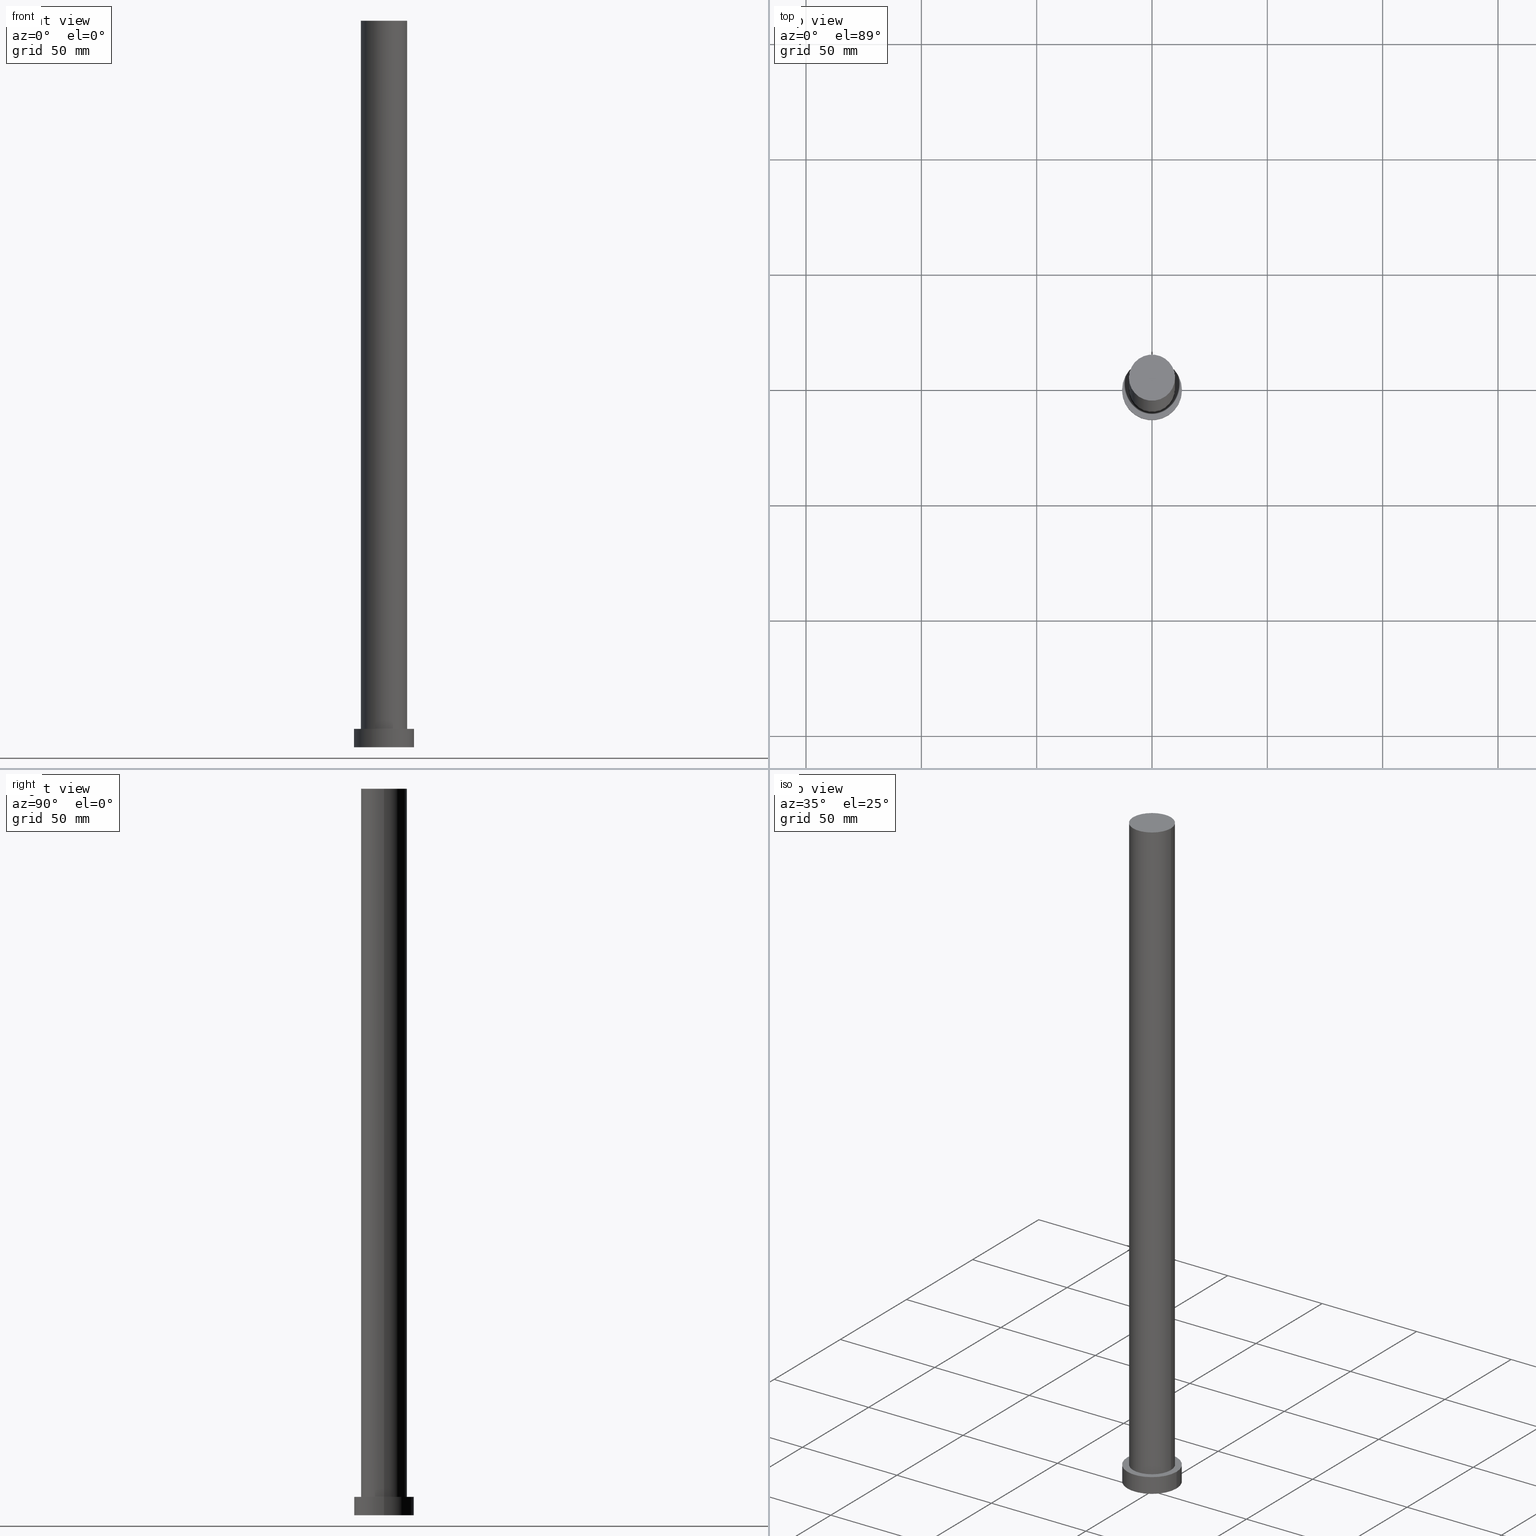
[diagram: canonical four-view strip — front | top / right | iso, engineering-drawing reading convention]
A machine part, canonical four-view strip (front | top / right | iso — engineering-drawing reading convention). The complete STEP part file that produces these views, byte-faithful:
ISO-10303-21;
HEADER;
FILE_DESCRIPTION (( 'STEP AP203' ),
    '1' );
FILE_NAME ('ffbc.STEP',
    '2023-02-13T08:43:53',
    ( '' ),
    ( '' ),
    'SwSTEP 2.0',
    'SolidWorks 2019',
    '' );
FILE_SCHEMA (( 'CONFIG_CONTROL_DESIGN' ));
ENDSEC;

DATA;
#1 = CARTESIAN_POINT ( 'NONE',  ( -10.00000000000000178, 0.000000000000000000, 315.0000000000000000 ) ) ;
#2 = VERTEX_POINT ( 'NONE', #60 ) ;
#3 = DIRECTION ( 'NONE',  ( 0.000000000000000000, 0.000000000000000000, 1.000000000000000000 ) ) ;
#4 = CYLINDRICAL_SURFACE ( 'NONE', #180, 13.00000000000000178 ) ;
#5 = CARTESIAN_POINT ( 'NONE',  ( -13.00000000000000178, 0.000000000000000000, 0.000000000000000000 ) ) ;
#6 = LINE ( 'NONE', #88, #204 ) ;
#7 = ORIENTED_EDGE ( 'NONE', *, *, #219, .F. ) ;
#8 = DIRECTION ( 'NONE',  ( 1.000000000000000000, 0.000000000000000000, 0.000000000000000000 ) ) ;
#9 = DATE_TIME_ROLE ( 'creation_date' ) ;
#10 = PERSON_AND_ORGANIZATION_ROLE ( 'design_supplier' ) ;
#11 = EDGE_CURVE ( 'NONE', #110, #94, #122, .T. ) ;
#12 = PERSON_AND_ORGANIZATION ( #214, #212 ) ;
#13 = APPLICATION_CONTEXT ( 'configuration controlled 3d designs of mechanical parts and assemblies' ) ;
#14 = ORIENTED_EDGE ( 'NONE', *, *, #179, .F. ) ;
#15 = CC_DESIGN_DATE_AND_TIME_ASSIGNMENT ( #90, #91, ( #19 ) ) ;
#16 = MECHANICAL_CONTEXT ( 'NONE', #130, 'mechanical' ) ;
#17 = VERTEX_POINT ( 'NONE', #5 ) ;
#18 = DIRECTION ( 'NONE',  ( 0.000000000000000000, 0.000000000000000000, 1.000000000000000000 ) ) ;
#19 = SECURITY_CLASSIFICATION ( '', '', #69 ) ;
#20 = CARTESIAN_POINT ( 'NONE',  ( -10.00000000000000178, 0.000000000000000000, 8.000000000000000000 ) ) ;
#21 = ADVANCED_FACE ( 'NONE', ( #194 ), #159, .T. ) ;
#22 = ORIENTED_EDGE ( 'NONE', *, *, #251, .F. ) ;
#23 = DIRECTION ( 'NONE',  ( 0.000000000000000000, 0.000000000000000000, 1.000000000000000000 ) ) ;
#24 = APPROVAL_PERSON_ORGANIZATION ( #147, #99, #52 ) ;
#25 = CARTESIAN_POINT ( 'NONE',  ( 0.000000000000000000, 0.000000000000000000, 315.0000000000000000 ) ) ;
#26 = ORIENTED_EDGE ( 'NONE', *, *, #11, .T. ) ;
#27 = VECTOR ( 'NONE', #167, 1000.000000000000000 ) ;
#28 = DIRECTION ( 'NONE',  ( -0.000000000000000000, -0.000000000000000000, -1.000000000000000000 ) ) ;
#29 = DESIGN_CONTEXT ( 'detailed design', #13, 'design' ) ;
#30 = CALENDAR_DATE ( 2023, 13, 2 ) ;
#31 = CARTESIAN_POINT ( 'NONE',  ( -10.00000000000000178, 0.000000000000000000, 315.0000000000000000 ) ) ;
#32 = DIRECTION ( 'NONE',  ( 0.000000000000000000, 0.000000000000000000, 1.000000000000000000 ) ) ;
#33 = CC_DESIGN_DATE_AND_TIME_ASSIGNMENT ( #188, #9, ( #255 ) ) ;
#34 = VERTEX_POINT ( 'NONE', #20 ) ;
#35 = CC_DESIGN_APPROVAL ( #208, ( #74 ) ) ;
#36 = CALENDAR_DATE ( 2023, 13, 2 ) ;
#37 = PERSON_AND_ORGANIZATION ( #214, #212 ) ;
#38 = EDGE_CURVE ( 'NONE', #17, #2, #252, .T. ) ;
#39 = AXIS2_PLACEMENT_3D ( 'NONE', #215, #105, #109 ) ;
#40 = ORIENTED_EDGE ( 'NONE', *, *, #251, .T. ) ;
#41 = ORIENTED_EDGE ( 'NONE', *, *, #213, .T. ) ;
#42 = DIRECTION ( 'NONE',  ( -0.000000000000000000, -0.000000000000000000, -1.000000000000000000 ) ) ;
#43 = AXIS2_PLACEMENT_3D ( 'NONE', #193, #18, #72 ) ;
#44 = CIRCLE ( 'NONE', #73, 13.00000000000000178 ) ;
#45 = ORIENTED_EDGE ( 'NONE', *, *, #228, .F. ) ;
#46 = DIRECTION ( 'NONE',  ( 0.000000000000000000, 0.000000000000000000, 1.000000000000000000 ) ) ;
#47 = EDGE_LOOP ( 'NONE', ( #7, #86, #40, #89 ) ) ;
#48 = CLOSED_SHELL ( 'NONE', ( #135, #21, #140, #117, #58, #126, #121 ) ) ;
#49 = PERSON_AND_ORGANIZATION ( #214, #212 ) ;
#50 = LOCAL_TIME ( 9, 43, 53.00000000000000000, #68 ) ;
#51 = CALENDAR_DATE ( 2023, 13, 2 ) ;
#52 = APPROVAL_ROLE ( '' ) ;
#53 = APPROVAL_DATE_TIME ( #226, #99 ) ;
#54 = DIRECTION ( 'NONE',  ( -0.000000000000000000, -0.000000000000000000, -1.000000000000000000 ) ) ;
#55 = CIRCLE ( 'NONE', #39, 10.00000000000000178 ) ;
#56 = CC_DESIGN_PERSON_AND_ORGANIZATION_ASSIGNMENT ( #150, #71, ( #74 ) ) ;
#57 = DIRECTION ( 'NONE',  ( 0.000000000000000000, 0.000000000000000000, 1.000000000000000000 ) ) ;
#58 = ADVANCED_FACE ( 'NONE', ( #157 ), #177, .F. ) ;
#59 = DIRECTION ( 'NONE',  ( -0.000000000000000000, -0.000000000000000000, -1.000000000000000000 ) ) ;
#60 = CARTESIAN_POINT ( 'NONE',  ( 13.00000000000000178, 1.592040838891559293E-15, 0.000000000000000000 ) ) ;
#61 = CARTESIAN_POINT ( 'NONE',  ( 10.00000000000000178, 1.224646799147353454E-15, 8.000000000000000000 ) ) ;
#62 = AXIS2_PLACEMENT_3D ( 'NONE', #230, #57, #96 ) ;
#63 = DIRECTION ( 'NONE',  ( 0.000000000000000000, 0.000000000000000000, 1.000000000000000000 ) ) ;
#64 = DIRECTION ( 'NONE',  ( -1.000000000000000000, 0.000000000000000000, 0.000000000000000000 ) ) ;
#65 = CARTESIAN_POINT ( 'NONE',  ( 0.000000000000000000, 0.000000000000000000, 8.000000000000000000 ) ) ;
#66 = EDGE_LOOP ( 'NONE', ( #182, #41 ) ) ;
#67 = CIRCLE ( 'NONE', #104, 13.00000000000000178 ) ;
#68 = COORDINATED_UNIVERSAL_TIME_OFFSET ( 1, 0, .AHEAD. ) ;
#69 = SECURITY_CLASSIFICATION_LEVEL ( 'unclassified' ) ;
#70 = EDGE_LOOP ( 'NONE', ( #183, #128, #161, #22 ) ) ;
#71 = PERSON_AND_ORGANIZATION_ROLE ( 'creator' ) ;
#72 = DIRECTION ( 'NONE',  ( 1.000000000000000000, 0.000000000000000000, 0.000000000000000000 ) ) ;
#73 = AXIS2_PLACEMENT_3D ( 'NONE', #199, #63, #125 ) ;
#74 = PRODUCT_DEFINITION_FORMATION_WITH_SPECIFIED_SOURCE ( 'LIBOVOLN�', '', #237, .NOT_KNOWN. ) ;
#75 = APPROVAL_PERSON_ORGANIZATION ( #249, #76, #148 ) ;
#76 = APPROVAL ( #205, 'NEUR�EN�' ) ;
#77 =( NAMED_UNIT ( * ) PLANE_ANGLE_UNIT ( ) SI_UNIT ( $, .RADIAN. ) );
#78 = DIRECTION ( 'NONE',  ( -0.000000000000000000, -0.000000000000000000, -1.000000000000000000 ) ) ;
#79 = FACE_OUTER_BOUND ( 'NONE', #66, .T. ) ;
#80 = CARTESIAN_POINT ( 'NONE',  ( 0.000000000000000000, 0.000000000000000000, 315.0000000000000000 ) ) ;
#81 = DIRECTION ( 'NONE',  ( -1.000000000000000000, 0.000000000000000000, 0.000000000000000000 ) ) ;
#82 = ORIENTED_EDGE ( 'NONE', *, *, #179, .T. ) ;
#83 = DIRECTION ( 'NONE',  ( -1.000000000000000000, 0.000000000000000000, 0.000000000000000000 ) ) ;
#84 = PRODUCT_RELATED_PRODUCT_CATEGORY ( 'detail', '', ( #237 ) ) ;
#85 = APPROVAL_PERSON_ORGANIZATION ( #37, #208, #169 ) ;
#86 = ORIENTED_EDGE ( 'NONE', *, *, #11, .F. ) ;
#87 = PERSON_AND_ORGANIZATION ( #214, #212 ) ;
#88 = CARTESIAN_POINT ( 'NONE',  ( 10.00000000000000178, 1.224646799147353454E-15, 315.0000000000000000 ) ) ;
#89 = ORIENTED_EDGE ( 'NONE', *, *, #196, .T. ) ;
#90 = DATE_AND_TIME ( #246, #118 ) ;
#91 = DATE_TIME_ROLE ( 'classification_date' ) ;
#92 = CALENDAR_DATE ( 2023, 13, 2 ) ;
#93 = APPROVAL_DATE_TIME ( #170, #208 ) ;
#94 = VERTEX_POINT ( 'NONE', #119 ) ;
#95 = EDGE_LOOP ( 'NONE', ( #217, #221 ) ) ;
#96 = DIRECTION ( 'NONE',  ( 1.000000000000000000, 0.000000000000000000, -0.000000000000000000 ) ) ;
#97 = ORIENTED_EDGE ( 'NONE', *, *, #242, .T. ) ;
#98 = FACE_BOUND ( 'NONE', #95, .T. ) ;
#99 = APPROVAL ( #192, 'NEUR�EN�' ) ;
#100 = AXIS2_PLACEMENT_3D ( 'NONE', #158, #231, #138 ) ;
#101 = VECTOR ( 'NONE', #113, 1000.000000000000000 ) ;
#102 = CIRCLE ( 'NONE', #155, 10.00000000000000178 ) ;
#103 = ORIENTED_EDGE ( 'NONE', *, *, #134, .F. ) ;
#104 = AXIS2_PLACEMENT_3D ( 'NONE', #65, #23, #236 ) ;
#105 = DIRECTION ( 'NONE',  ( 0.000000000000000000, 0.000000000000000000, 1.000000000000000000 ) ) ;
#106 = ORIENTED_EDGE ( 'NONE', *, *, #168, .T. ) ;
#107 = LINE ( 'NONE', #184, #101 ) ;
#108 = EDGE_LOOP ( 'NONE', ( #26, #106 ) ) ;
#109 = DIRECTION ( 'NONE',  ( 1.000000000000000000, 0.000000000000000000, 0.000000000000000000 ) ) ;
#110 = VERTEX_POINT ( 'NONE', #1 ) ;
#111 = CARTESIAN_POINT ( 'NONE',  ( 0.000000000000000000, 0.000000000000000000, 8.000000000000000000 ) ) ;
#112 = COORDINATED_UNIVERSAL_TIME_OFFSET ( 1, 0, .AHEAD. ) ;
#113 = DIRECTION ( 'NONE',  ( -0.000000000000000000, -0.000000000000000000, -1.000000000000000000 ) ) ;
#114 = APPROVAL_STATUS ( 'not_yet_approved' ) ;
#115 = COORDINATED_UNIVERSAL_TIME_OFFSET ( 1, 0, .AHEAD. ) ;
#116 =( LENGTH_UNIT ( ) NAMED_UNIT ( * ) SI_UNIT ( .MILLI., .METRE. ) );
#117 = ADVANCED_FACE ( 'NONE', ( #98, #79 ), #178, .T. ) ;
#118 = LOCAL_TIME ( 9, 43, 53.00000000000000000, #115 ) ;
#119 = CARTESIAN_POINT ( 'NONE',  ( 10.00000000000000178, 1.224646799147353454E-15, 315.0000000000000000 ) ) ;
#120 = CYLINDRICAL_SURFACE ( 'NONE', #211, 10.00000000000000178 ) ;
#121 = ADVANCED_FACE ( 'NONE', ( #174 ), #173, .T. ) ;
#122 = CIRCLE ( 'NONE', #253, 10.00000000000000178 ) ;
#123 = DIRECTION ( 'NONE',  ( 1.000000000000000000, 0.000000000000000000, -0.000000000000000000 ) ) ;
#124 = ORIENTED_EDGE ( 'NONE', *, *, #38, .F. ) ;
#125 = DIRECTION ( 'NONE',  ( 1.000000000000000000, 0.000000000000000000, 0.000000000000000000 ) ) ;
#126 = ADVANCED_FACE ( 'NONE', ( #160 ), #120, .T. ) ;
#127 = DIRECTION ( 'NONE',  ( 0.000000000000000000, 0.000000000000000000, 1.000000000000000000 ) ) ;
#128 = ORIENTED_EDGE ( 'NONE', *, *, #219, .T. ) ;
#129 = UNCERTAINTY_MEASURE_WITH_UNIT (LENGTH_MEASURE( 1.000000000000000082E-05 ), #116, 'distance_accuracy_value', 'NONE');
#130 = APPLICATION_CONTEXT ( 'configuration controlled 3d designs of mechanical parts and assemblies' ) ;
#131 = CARTESIAN_POINT ( 'NONE',  ( 0.000000000000000000, 0.000000000000000000, 0.000000000000000000 ) ) ;
#132 = APPROVAL_DATE_TIME ( #207, #76 ) ;
#133 = PERSON_AND_ORGANIZATION_ROLE ( 'design_owner' ) ;
#134 = EDGE_CURVE ( 'NONE', #225, #17, #241, .T. ) ;
#135 = ADVANCED_FACE ( 'NONE', ( #203 ), #220, .T. ) ;
#136 = CARTESIAN_POINT ( 'NONE',  ( 0.000000000000000000, 0.000000000000000000, 8.000000000000000000 ) ) ;
#137 = PRODUCT_DEFINITION_SHAPE ( 'NONE', 'NONE',  #255 ) ;
#138 = DIRECTION ( 'NONE',  ( 1.000000000000000000, 0.000000000000000000, -0.000000000000000000 ) ) ;
#139 = DIRECTION ( 'NONE',  ( -1.000000000000000000, 0.000000000000000000, 0.000000000000000000 ) ) ;
#140 = ADVANCED_FACE ( 'NONE', ( #239 ), #4, .T. ) ;
#141 = CARTESIAN_POINT ( 'NONE',  ( 0.000000000000000000, 0.000000000000000000, 315.0000000000000000 ) ) ;
#142 = AXIS2_PLACEMENT_3D ( 'NONE', #80, #127, #123 ) ;
#143 = CC_DESIGN_APPROVAL ( #76, ( #255 ) ) ;
#144 = DIRECTION ( 'NONE',  ( 1.000000000000000000, 0.000000000000000000, 0.000000000000000000 ) ) ;
#145 = CC_DESIGN_PERSON_AND_ORGANIZATION_ASSIGNMENT ( #49, #222, ( #255 ) ) ;
#146 = APPLICATION_PROTOCOL_DEFINITION ( 'international standard', 'config_control_design', 1994, #130 ) ;
#147 = PERSON_AND_ORGANIZATION ( #214, #212 ) ;
#148 = APPROVAL_ROLE ( '' ) ;
#149 = EDGE_CURVE ( 'NONE', #235, #34, #55, .T. ) ;
#150 = PERSON_AND_ORGANIZATION ( #214, #212 ) ;
#151 = EDGE_LOOP ( 'NONE', ( #202, #97, #82, #103 ) ) ;
#152 = VECTOR ( 'NONE', #54, 1000.000000000000000 ) ;
#153 = CC_DESIGN_PERSON_AND_ORGANIZATION_ASSIGNMENT ( #250, #10, ( #74 ) ) ;
#154 = AXIS2_PLACEMENT_3D ( 'NONE', #136, #78, #139 ) ;
#155 = AXIS2_PLACEMENT_3D ( 'NONE', #25, #46, #144 ) ;
#156 = CC_DESIGN_SECURITY_CLASSIFICATION ( #19, ( #74 ) ) ;
#157 = FACE_OUTER_BOUND ( 'NONE', #189, .T. ) ;
#158 = CARTESIAN_POINT ( 'NONE',  ( 0.000000000000000000, 0.000000000000000000, 8.000000000000000000 ) ) ;
#159 = CYLINDRICAL_SURFACE ( 'NONE', #154, 13.00000000000000178 ) ;
#160 = FACE_OUTER_BOUND ( 'NONE', #47, .T. ) ;
#161 = ORIENTED_EDGE ( 'NONE', *, *, #149, .T. ) ;
#162 = DIRECTION ( 'NONE',  ( 0.000000000000000000, 0.000000000000000000, 1.000000000000000000 ) ) ;
#163 = DIRECTION ( 'NONE',  ( 0.000000000000000000, 0.000000000000000000, 1.000000000000000000 ) ) ;
#164 = ADVANCED_BREP_SHAPE_REPRESENTATION ( 'ffbc', ( #234, #165 ), #240 ) ;
#165 = AXIS2_PLACEMENT_3D ( 'NONE', #131, #32, #209 ) ;
#166 = SHAPE_DEFINITION_REPRESENTATION ( #137, #164 ) ;
#167 = DIRECTION ( 'NONE',  ( -0.000000000000000000, -0.000000000000000000, -1.000000000000000000 ) ) ;
#168 = EDGE_CURVE ( 'NONE', #94, #110, #102, .T. ) ;
#169 = APPROVAL_ROLE ( '' ) ;
#170 = DATE_AND_TIME ( #92, #248 ) ;
#171 = APPLICATION_PROTOCOL_DEFINITION ( 'international standard', 'config_control_design', 1994, #13 ) ;
#172 = AXIS2_PLACEMENT_3D ( 'NONE', #232, #3, #8 ) ;
#173 = PLANE ( 'NONE',  #142 ) ;
#174 = FACE_OUTER_BOUND ( 'NONE', #108, .T. ) ;
#175 = CC_DESIGN_PERSON_AND_ORGANIZATION_ASSIGNMENT ( #87, #224, ( #19 ) ) ;
#176 =( NAMED_UNIT ( * ) SI_UNIT ( $, .STERADIAN. ) SOLID_ANGLE_UNIT ( ) );
#177 = PLANE ( 'NONE',  #62 ) ;
#178 = PLANE ( 'NONE',  #100 ) ;
#179 = EDGE_CURVE ( 'NONE', #2, #17, #44, .T. ) ;
#180 = AXIS2_PLACEMENT_3D ( 'NONE', #216, #28, #81 ) ;
#181 = CIRCLE ( 'NONE', #172, 13.00000000000000178 ) ;
#182 = ORIENTED_EDGE ( 'NONE', *, *, #228, .T. ) ;
#183 = ORIENTED_EDGE ( 'NONE', *, *, #168, .F. ) ;
#184 = CARTESIAN_POINT ( 'NONE',  ( 13.00000000000000178, 1.592040838891559293E-15, 8.000000000000000000 ) ) ;
#185 = ORIENTED_EDGE ( 'NONE', *, *, #134, .T. ) ;
#186 = DIRECTION ( 'NONE',  ( 1.000000000000000000, 0.000000000000000000, 0.000000000000000000 ) ) ;
#187 = CARTESIAN_POINT ( 'NONE',  ( -13.00000000000000178, 0.000000000000000000, 8.000000000000000000 ) ) ;
#188 = DATE_AND_TIME ( #30, #254 ) ;
#189 = EDGE_LOOP ( 'NONE', ( #124, #14 ) ) ;
#190 = AXIS2_PLACEMENT_3D ( 'NONE', #111, #162, #186 ) ;
#191 = COORDINATED_UNIVERSAL_TIME_OFFSET ( 1, 0, .AHEAD. ) ;
#192 = APPROVAL_STATUS ( 'not_yet_approved' ) ;
#193 = CARTESIAN_POINT ( 'NONE',  ( 0.000000000000000000, 0.000000000000000000, 0.000000000000000000 ) ) ;
#194 = FACE_OUTER_BOUND ( 'NONE', #151, .T. ) ;
#195 = LOCAL_TIME ( 9, 43, 53.00000000000000000, #191 ) ;
#196 = EDGE_CURVE ( 'NONE', #34, #235, #227, .T. ) ;
#197 = CARTESIAN_POINT ( 'NONE',  ( 0.000000000000000000, 0.000000000000000000, 315.0000000000000000 ) ) ;
#198 = AXIS2_PLACEMENT_3D ( 'NONE', #141, #201, #83 ) ;
#199 = CARTESIAN_POINT ( 'NONE',  ( 0.000000000000000000, 0.000000000000000000, 0.000000000000000000 ) ) ;
#200 = CARTESIAN_POINT ( 'NONE',  ( 0.000000000000000000, 0.000000000000000000, 315.0000000000000000 ) ) ;
#201 = DIRECTION ( 'NONE',  ( -0.000000000000000000, -0.000000000000000000, -1.000000000000000000 ) ) ;
#202 = ORIENTED_EDGE ( 'NONE', *, *, #213, .F. ) ;
#203 = FACE_OUTER_BOUND ( 'NONE', #70, .T. ) ;
#204 = VECTOR ( 'NONE', #59, 1000.000000000000000 ) ;
#205 = APPROVAL_STATUS ( 'not_yet_approved' ) ;
#206 = COORDINATED_UNIVERSAL_TIME_OFFSET ( 1, 0, .AHEAD. ) ;
#207 = DATE_AND_TIME ( #51, #195 ) ;
#208 = APPROVAL ( #114, 'NEUR�EN�' ) ;
#209 = DIRECTION ( 'NONE',  ( 1.000000000000000000, 0.000000000000000000, 0.000000000000000000 ) ) ;
#210 = ORIENTED_EDGE ( 'NONE', *, *, #242, .F. ) ;
#211 = AXIS2_PLACEMENT_3D ( 'NONE', #197, #42, #64 ) ;
#212 = ORGANIZATION ( 'NEUR�EN�', 'NEUR�EN�', '' ) ;
#213 = EDGE_CURVE ( 'NONE', #245, #225, #181, .T. ) ;
#214 = PERSON ( 'NEUR�EN�', 'NEUR�EN�', 'NEUR�EN�', ('NEUR�EN�'), ('NEUR�EN�'), ('NEUR�EN�') ) ;
#215 = CARTESIAN_POINT ( 'NONE',  ( 0.000000000000000000, 0.000000000000000000, 8.000000000000000000 ) ) ;
#216 = CARTESIAN_POINT ( 'NONE',  ( 0.000000000000000000, 0.000000000000000000, 8.000000000000000000 ) ) ;
#217 = ORIENTED_EDGE ( 'NONE', *, *, #196, .F. ) ;
#218 = ORIENTED_EDGE ( 'NONE', *, *, #38, .T. ) ;
#219 = EDGE_CURVE ( 'NONE', #94, #235, #6, .T. ) ;
#220 = CYLINDRICAL_SURFACE ( 'NONE', #198, 10.00000000000000178 ) ;
#221 = ORIENTED_EDGE ( 'NONE', *, *, #149, .F. ) ;
#222 = PERSON_AND_ORGANIZATION_ROLE ( 'creator' ) ;
#223 = LINE ( 'NONE', #31, #152 ) ;
#224 = PERSON_AND_ORGANIZATION_ROLE ( 'classification_officer' ) ;
#225 = VERTEX_POINT ( 'NONE', #243 ) ;
#226 = DATE_AND_TIME ( #36, #50 ) ;
#227 = CIRCLE ( 'NONE', #190, 10.00000000000000178 ) ;
#228 = EDGE_CURVE ( 'NONE', #225, #245, #67, .T. ) ;
#229 = CC_DESIGN_APPROVAL ( #99, ( #19 ) ) ;
#230 = CARTESIAN_POINT ( 'NONE',  ( 0.000000000000000000, 0.000000000000000000, 0.000000000000000000 ) ) ;
#231 = DIRECTION ( 'NONE',  ( 0.000000000000000000, 0.000000000000000000, 1.000000000000000000 ) ) ;
#232 = CARTESIAN_POINT ( 'NONE',  ( 0.000000000000000000, 0.000000000000000000, 8.000000000000000000 ) ) ;
#233 = EDGE_LOOP ( 'NONE', ( #210, #45, #185, #218 ) ) ;
#234 = MANIFOLD_SOLID_BREP ( 'P�idat vysunut�m3', #48 ) ;
#235 = VERTEX_POINT ( 'NONE', #61 ) ;
#236 = DIRECTION ( 'NONE',  ( 1.000000000000000000, 0.000000000000000000, 0.000000000000000000 ) ) ;
#237 = PRODUCT ( 'ffbc', 'ffbc', '', ( #16 ) ) ;
#238 = DIRECTION ( 'NONE',  ( 1.000000000000000000, 0.000000000000000000, 0.000000000000000000 ) ) ;
#239 = FACE_OUTER_BOUND ( 'NONE', #233, .T. ) ;
#240 =( GEOMETRIC_REPRESENTATION_CONTEXT ( 3 ) GLOBAL_UNCERTAINTY_ASSIGNED_CONTEXT ( ( #129 ) ) GLOBAL_UNIT_ASSIGNED_CONTEXT ( ( #116, #77, #176 ) ) REPRESENTATION_CONTEXT ( 'NONE', 'WORKASPACE' ) );
#241 = LINE ( 'NONE', #187, #27 ) ;
#242 = EDGE_CURVE ( 'NONE', #245, #2, #107, .T. ) ;
#243 = CARTESIAN_POINT ( 'NONE',  ( -13.00000000000000178, 0.000000000000000000, 8.000000000000000000 ) ) ;
#244 = CC_DESIGN_PERSON_AND_ORGANIZATION_ASSIGNMENT ( #12, #133, ( #237 ) ) ;
#245 = VERTEX_POINT ( 'NONE', #247 ) ;
#246 = CALENDAR_DATE ( 2023, 13, 2 ) ;
#247 = CARTESIAN_POINT ( 'NONE',  ( 13.00000000000000178, 1.592040838891559293E-15, 8.000000000000000000 ) ) ;
#248 = LOCAL_TIME ( 9, 43, 53.00000000000000000, #206 ) ;
#249 = PERSON_AND_ORGANIZATION ( #214, #212 ) ;
#250 = PERSON_AND_ORGANIZATION ( #214, #212 ) ;
#251 = EDGE_CURVE ( 'NONE', #110, #34, #223, .T. ) ;
#252 = CIRCLE ( 'NONE', #43, 13.00000000000000178 ) ;
#253 = AXIS2_PLACEMENT_3D ( 'NONE', #200, #163, #238 ) ;
#254 = LOCAL_TIME ( 9, 43, 53.00000000000000000, #112 ) ;
#255 = PRODUCT_DEFINITION ( 'NEZN�M�', '', #74, #29 ) ;
ENDSEC;
END-ISO-10303-21;
